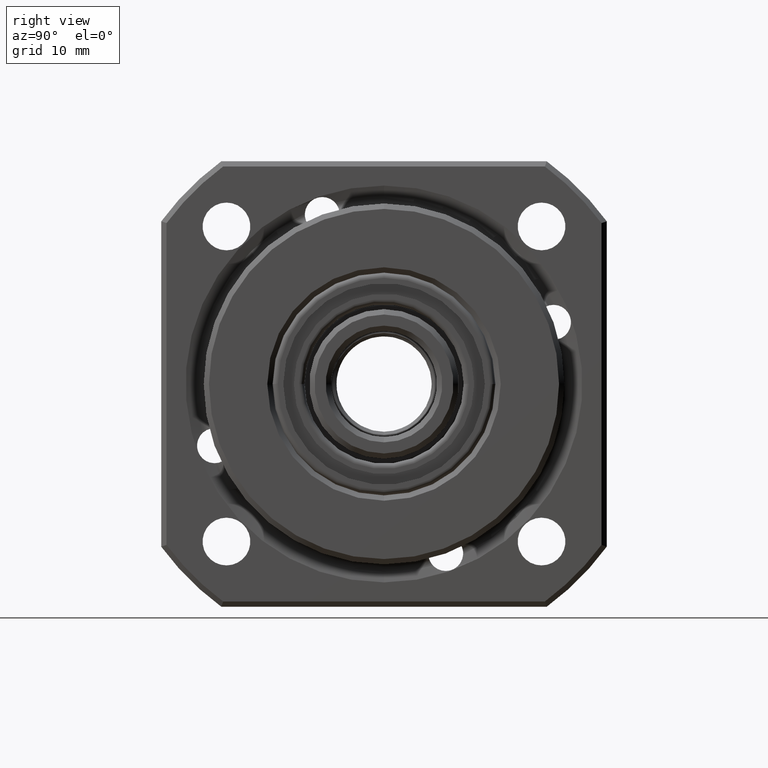
[diagram: clean part render]
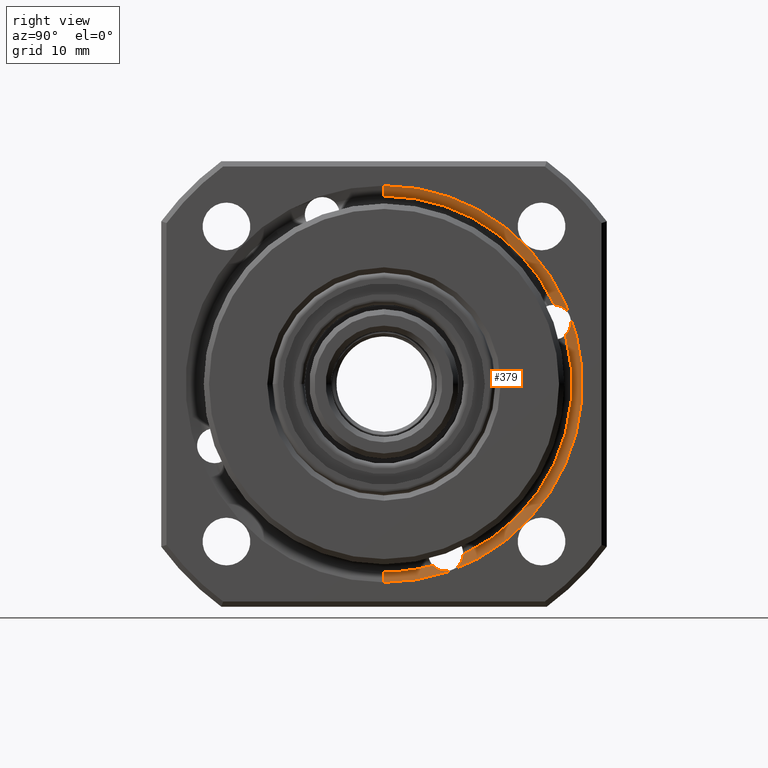
[diagram: same view with one face highlighted and labeled with its STEP entity id]
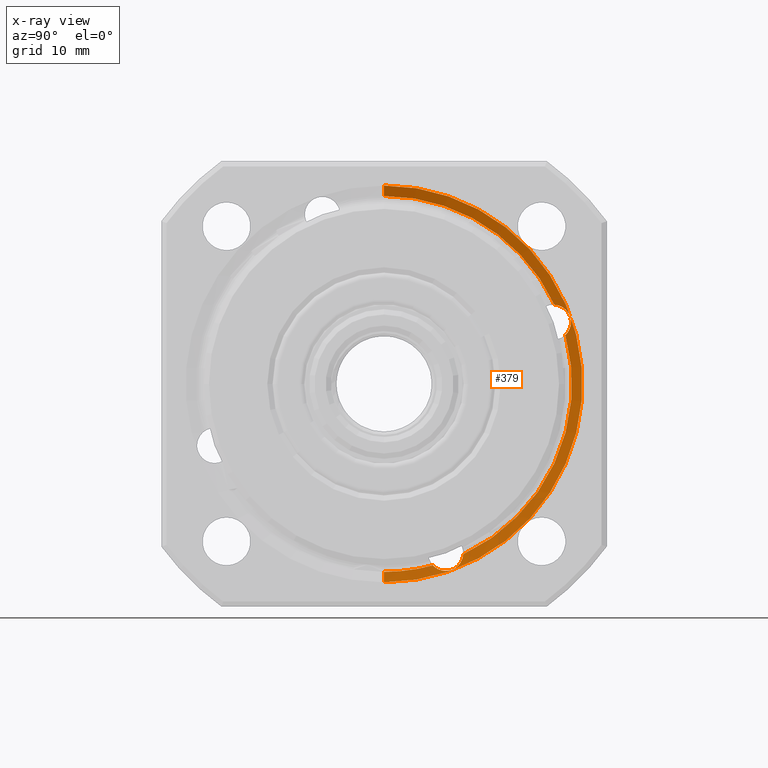
[diagram: x-ray of the same camera — body ghosted, the highlighted face saturated]
A machine part, right view. The second image highlights one B-rep face of the part: STEP entity #379.
The next image is the same camera in x-ray: the body ghosted, the highlighted face saturated — about 0% of this face is hidden behind the body in this view.
In plain terms, the highlighted conical surface has half-angle 74.64 deg.
Its self-contained STEP definition (entity closure, byte-faithful):
#63 = EDGE_CURVE ( 'NONE', #19482, #19540, #19090, .T. ) ;
#323 = VERTEX_POINT ( 'NONE', #19451 ) ;
#362 = ORIENTED_EDGE ( 'NONE', *, *, #15054, .T. ) ;
#363 = ORIENTED_EDGE ( 'NONE', *, *, #366, .T. ) ;
#366 = EDGE_CURVE ( 'NONE', #323, #15052, #489, .T. ) ;
#369 = ORIENTED_EDGE ( 'NONE', *, *, #19499, .F. ) ;
#370 = ORIENTED_EDGE ( 'NONE', *, *, #17004, .T. ) ;
#371 = EDGE_LOOP ( 'NONE', ( #369, #370, #363, #362, #401, #396, #385, #15477, #15478 ) ) ;
#379 = ADVANCED_FACE ( 'NONE', ( #465 ), #459, .F. ) ;
#382 = EDGE_CURVE ( 'NONE', #15120, #15009, #522, .T. ) ;
#385 = ORIENTED_EDGE ( 'NONE', *, *, #15175, .T. ) ;
#396 = ORIENTED_EDGE ( 'NONE', *, *, #15010, .T. ) ;
#401 = ORIENTED_EDGE ( 'NONE', *, *, #382, .T. ) ;
#457 = CARTESIAN_POINT ( 'NONE',  ( 5.728575577791647600, 0.0000000000000000000, 0.0000000000000000000 ) ) ;
#458 = AXIS2_PLACEMENT_3D ( 'NONE', #457, #524, #523 ) ;
#459 = CONICAL_SURFACE ( 'NONE', #458, 17.71190649074651400, 1.302713622844521500 ) ;
#465 = FACE_OUTER_BOUND ( 'NONE', #371, .T. ) ;
#466 = CARTESIAN_POINT ( 'NONE',  ( 5.728575577791646700, 17.10168638614014100, 4.609116432360703000 ) ) ;
#467 = CARTESIAN_POINT ( 'NONE',  ( 5.767212661747520600, 17.21803884916616300, 4.717908448881091000 ) ) ;
#468 = CARTESIAN_POINT ( 'NONE',  ( 5.802325543642256300, 17.31674880529568800, 4.841139131269209800 ) ) ;
#469 = CARTESIAN_POINT ( 'NONE',  ( 5.865871283844629900, 17.47851994692917500, 5.116653854459164200 ) ) ;
#470 = CARTESIAN_POINT ( 'NONE',  ( 5.893551360994446300, 17.53941548774999900, 5.266404702651184900 ) ) ;
#471 = CARTESIAN_POINT ( 'NONE',  ( 5.938875968216626300, 17.61575110817011600, 5.578688112689762100 ) ) ;
#472 = CARTESIAN_POINT ( 'NONE',  ( 5.956582848612114000, 17.63109000802730000, 5.742177532209025200 ) ) ;
#473 = CARTESIAN_POINT ( 'NONE',  ( 5.980184361663409800, 17.61364211282261400, 6.064745673990111100 ) ) ;
#474 = CARTESIAN_POINT ( 'NONE',  ( 5.986275243218680800, 17.58046807014964200, 6.227129751341998100 ) ) ;
#475 = CARTESIAN_POINT ( 'NONE',  ( 5.986255223868691500, 17.46978754811569700, 6.530988222567513500 ) ) ;
#476 = CARTESIAN_POINT ( 'NONE',  ( 5.980122885862383200, 17.39058284963612900, 6.676879135821045500 ) ) ;
#477 = CARTESIAN_POINT ( 'NONE',  ( 5.956533503709296800, 17.19688188351288700, 6.934581858715228400 ) ) ;
#478 = CARTESIAN_POINT ( 'NONE',  ( 5.938755288125873800, 17.07963458404452000, 7.050262235467986500 ) ) ;
#479 = CARTESIAN_POINT ( 'NONE',  ( 5.893515771534854500, 16.82098314770388800, 7.239875477771704500 ) ) ;
#480 = CARTESIAN_POINT ( 'NONE',  ( 5.865827229127376100, 16.67802905934624700, 7.315483282558085800 ) ) ;
#481 = CARTESIAN_POINT ( 'NONE',  ( 5.802312453287338000, 16.37716847165484400, 7.422468636280592100 ) ) ;
#482 = CARTESIAN_POINT ( 'NONE',  ( 5.767210790685894000, 16.22238837359190500, 7.453414898963696800 ) ) ;
#487 = CARTESIAN_POINT ( 'NONE',  ( 5.728575577791647600, 16.06333475839026500, 7.461964083057463200 ) ) ;
#489 = B_SPLINE_CURVE_WITH_KNOTS ( 'NONE', 3,
 ( #487, #482, #481, #480, #479, #478, #477, #476, #475, #474, #473, #472, #471, #470, #469, #468, #467, #466 ),
 .UNSPECIFIED., .F., .F.,
 ( 4, 2, 2, 2, 2, 2, 2, 2, 4 ),
 ( 8.366653779069564500E-007, 0.0004857858594675170900, 0.0009707350535571272900, 0.001455684247646737400, 0.001940633441736347600, 0.002425582635825957800, 0.002910531829915567700, 0.003395481024005178200, 0.003880430218094788100 ),
 .UNSPECIFIED. ) ;
#504 = CARTESIAN_POINT ( 'NONE',  ( 5.961288530987215700, 5.814342436536262100, -17.62477455336047800 ) ) ;
#505 = CARTESIAN_POINT ( 'NONE',  ( 5.979263079586454300, 6.023206071639195100, -17.62477455336047800 ) ) ;
#506 = CARTESIAN_POINT ( 'NONE',  ( 5.987778712637638300, 6.235066701291461100, -17.58396875879960300 ) ) ;
#507 = CARTESIAN_POINT ( 'NONE',  ( 5.985168406052669500, 6.527056486955110000, -17.46659974646413000 ) ) ;
#508 = CARTESIAN_POINT ( 'NONE',  ( 5.981724103986740800, 6.622097689956397900, -17.41736318841546800 ) ) ;
#509 = CARTESIAN_POINT ( 'NONE',  ( 5.969968914741374800, 6.798485750747709700, -17.30330473988637500 ) ) ;
#510 = CARTESIAN_POINT ( 'NONE',  ( 5.961714902765111300, 6.880344917140591000, -17.23853774505746700 ) ) ;
#511 = CARTESIAN_POINT ( 'NONE',  ( 5.940431345966806600, 7.031512805499700000, -17.09368249696449700 ) ) ;
#512 = CARTESIAN_POINT ( 'NONE',  ( 5.927299793972433200, 7.100804995016962300, -17.01317700463091900 ) ) ;
#513 = CARTESIAN_POINT ( 'NONE',  ( 5.897295344812885500, 7.220752674182131500, -16.84384060874524600 ) ) ;
#514 = CARTESIAN_POINT ( 'NONE',  ( 5.880320246249374000, 7.272334045483767700, -16.75423741786040600 ) ) ;
#515 = CARTESIAN_POINT ( 'NONE',  ( 5.823268359432946200, 7.401759357610931300, -16.47057196588791300 ) ) ;
#516 = CARTESIAN_POINT ( 'NONE',  ( 5.778649345986650600, 7.450883780129105500, -16.26947866860982100 ) ) ;
#517 = CARTESIAN_POINT ( 'NONE',  ( 5.728575577791647600, 7.461964083057409900, -16.06333475839029400 ) ) ;
#522 = B_SPLINE_CURVE_WITH_KNOTS ( 'NONE', 3,
 ( #517, #516, #515, #514, #513, #512, #511, #510, #509, #508, #507, #506, #505, #504 ),
 .UNSPECIFIED., .F., .F.,
 ( 4, 2, 2, 2, 2, 2, 4 ),
 ( 8.366653779069564500E-007, 0.0006293626061476786600, 0.0009436255765325643300, 0.001257888546917450100, 0.001572151517302335700, 0.001886414487687221000, 0.002514940428456989700 ),
 .UNSPECIFIED. ) ;
#523 = DIRECTION ( 'NONE',  ( 0.0000000000000000000, 0.0000000000000000000, -1.000000000000000000 ) ) ;
#524 = DIRECTION ( 'NONE',  ( 1.000000000000000000, 0.0000000000000000000, 0.0000000000000000000 ) ) ;
#556 = CARTESIAN_POINT ( 'NONE',  ( 5.728575577791644900, 4.609116432360642600, -17.10168638614015900 ) ) ;
#557 = CARTESIAN_POINT ( 'NONE',  ( 5.755773552489884500, 4.685698881389954300, -17.18359089397190000 ) ) ;
#558 = CARTESIAN_POINT ( 'NONE',  ( 5.781208225258092500, 4.769510609249516100, -17.25666155216972400 ) ) ;
#559 = CARTESIAN_POINT ( 'NONE',  ( 5.828763618815477400, 4.951284538596580900, -17.38546193539502500 ) ) ;
#560 = CARTESIAN_POINT ( 'NONE',  ( 5.851099671969954000, 5.050485931683432700, -17.44164356751067000 ) ) ;
#561 = CARTESIAN_POINT ( 'NONE',  ( 5.890888007258608300, 5.256867470919793600, -17.53182404756124100 ) ) ;
#562 = CARTESIAN_POINT ( 'NONE',  ( 5.908432116523358400, 5.364017969775481700, -17.56619544137922200 ) ) ;
#563 = CARTESIAN_POINT ( 'NONE',  ( 5.938841603679756000, 5.586433190183245600, -17.61290456761837900 ) ) ;
#564 = CARTESIAN_POINT ( 'NONE',  ( 5.951525981427388400, 5.700901947186532800, -17.62477455336047100 ) ) ;
#565 = CARTESIAN_POINT ( 'NONE',  ( 5.961288530987215700, 5.814342436536262100, -17.62477455336047800 ) ) ;
#568 = B_SPLINE_CURVE_WITH_KNOTS ( 'NONE', 3,
 ( #565, #564, #563, #562, #561, #560, #559, #558, #557, #556 ),
 .UNSPECIFIED., .F., .F.,
 ( 4, 2, 2, 2, 4 ),
 ( 0.002514940428456989700, 0.002856312875866439900, 0.003197685323275890000, 0.003539057770685339700, 0.003880430218094789900 ),
 .UNSPECIFIED. ) ;
#569 = CARTESIAN_POINT ( 'NONE',  ( 5.961288530987215700, 5.814342436536262100, -17.62477455336047800 ) ) ;
#574 = CARTESIAN_POINT ( 'NONE',  ( 5.728575577791644900, 4.609116432360642600, -17.10168638614015900 ) ) ;
#678 = DIRECTION ( 'NONE',  ( 0.0000000000000000000, 0.0000000000000000000, 1.000000000000000000 ) ) ;
#679 = DIRECTION ( 'NONE',  ( -1.000000000000000000, -0.0000000000000000000, -0.0000000000000000000 ) ) ;
#680 = AXIS2_PLACEMENT_3D ( 'NONE', #706, #679, #678 ) ;
#681 = CIRCLE ( 'NONE', #680, 17.71190649074651400 ) ;
#704 = CARTESIAN_POINT ( 'NONE',  ( 5.728575577791646700, 17.10168638614014100, 4.609116432360703000 ) ) ;
#706 = CARTESIAN_POINT ( 'NONE',  ( 5.728575577791647600, 0.0000000000000000000, 0.0000000000000000000 ) ) ;
#808 = CARTESIAN_POINT ( 'NONE',  ( 5.728575577791647600, 7.461964083057409900, -16.06333475839029400 ) ) ;
#959 = DIRECTION ( 'NONE',  ( 0.0000000000000000000, 0.0000000000000000000, 1.000000000000000000 ) ) ;
#960 = DIRECTION ( 'NONE',  ( -1.000000000000000000, -0.0000000000000000000, -0.0000000000000000000 ) ) ;
#961 = CARTESIAN_POINT ( 'NONE',  ( 5.728575577791647600, 0.0000000000000000000, 0.0000000000000000000 ) ) ;
#962 = AXIS2_PLACEMENT_3D ( 'NONE', #961, #960, #959 ) ;
#963 = CIRCLE ( 'NONE', #962, 17.71190649074651400 ) ;
#4163 = CIRCLE ( 'NONE', #4221, 17.71190649074651400 ) ;
#4218 = DIRECTION ( 'NONE',  ( 0.0000000000000000000, 0.0000000000000000000, 1.000000000000000000 ) ) ;
#4219 = DIRECTION ( 'NONE',  ( -1.000000000000000000, -0.0000000000000000000, -0.0000000000000000000 ) ) ;
#4220 = CARTESIAN_POINT ( 'NONE',  ( 5.728575577791647600, 0.0000000000000000000, 0.0000000000000000000 ) ) ;
#4221 = AXIS2_PLACEMENT_3D ( 'NONE', #4220, #4219, #4218 ) ;
#14110 = CARTESIAN_POINT ( 'NONE',  ( 5.728575577791647600, 0.0000000000000000000, 17.71190649074651800 ) ) ;
#14627 = CARTESIAN_POINT ( 'NONE',  ( 6.000000000000005300, 2.290013881647845200E-015, 18.70000000000000300 ) ) ;
#14650 = CARTESIAN_POINT ( 'NONE',  ( 5.728575577791647600, 0.0000000000000000000, -17.71190649074651400 ) ) ;
#14651 = DIRECTION ( 'NONE',  ( 0.2648831134331488500, 1.180864061162635900E-016, 0.9642805277604447100 ) ) ;
#14652 = VECTOR ( 'NONE', #14651, 999.9999999999998900 ) ;
#14653 = CARTESIAN_POINT ( 'NONE',  ( 5.728575577791647600, 2.169011322687598900E-015, 17.71190649074651400 ) ) ;
#14654 = LINE ( 'NONE', #14653, #14652 ) ;
#14688 = DIRECTION ( 'NONE',  ( 0.2648831134331488500, 0.0000000000000000000, -0.9642805277604447100 ) ) ;
#14689 = VECTOR ( 'NONE', #14688, 999.9999999999998900 ) ;
#14690 = CARTESIAN_POINT ( 'NONE',  ( 5.728575577791647600, 0.0000000000000000000, -17.71190649074651400 ) ) ;
#14691 = LINE ( 'NONE', #14690, #14689 ) ;
#14692 = CARTESIAN_POINT ( 'NONE',  ( 6.000000000000005300, 0.0000000000000000000, -18.70000000000000300 ) ) ;
#15006 = VERTEX_POINT ( 'NONE', #574 ) ;
#15009 = VERTEX_POINT ( 'NONE', #569 ) ;
#15010 = EDGE_CURVE ( 'NONE', #15009, #15006, #568, .T. ) ;
#15052 = VERTEX_POINT ( 'NONE', #704 ) ;
#15054 = EDGE_CURVE ( 'NONE', #15052, #15120, #681, .T. ) ;
#15120 = VERTEX_POINT ( 'NONE', #808 ) ;
#15175 = EDGE_CURVE ( 'NONE', #15006, #19501, #963, .T. ) ;
#15477 = ORIENTED_EDGE ( 'NONE', *, *, #19543, .T. ) ;
#15478 = ORIENTED_EDGE ( 'NONE', *, *, #63, .F. ) ;
#17004 = EDGE_CURVE ( 'NONE', #18683, #323, #4163, .T. ) ;
#18683 = VERTEX_POINT ( 'NONE', #14110 ) ;
#19086 = DIRECTION ( 'NONE',  ( 0.0000000000000000000, 0.0000000000000000000, 1.000000000000000000 ) ) ;
#19087 = DIRECTION ( 'NONE',  ( -1.000000000000000000, -0.0000000000000000000, -0.0000000000000000000 ) ) ;
#19088 = CARTESIAN_POINT ( 'NONE',  ( 6.000000000000005300, 0.0000000000000000000, 0.0000000000000000000 ) ) ;
#19089 = AXIS2_PLACEMENT_3D ( 'NONE', #19088, #19087, #19086 ) ;
#19090 = CIRCLE ( 'NONE', #19089, 18.70000000000000300 ) ;
#19451 = CARTESIAN_POINT ( 'NONE',  ( 5.728575577791647600, 16.06333475839026500, 7.461964083057463200 ) ) ;
#19482 = VERTEX_POINT ( 'NONE', #14627 ) ;
#19499 = EDGE_CURVE ( 'NONE', #18683, #19482, #14654, .T. ) ;
#19501 = VERTEX_POINT ( 'NONE', #14650 ) ;
#19540 = VERTEX_POINT ( 'NONE', #14692 ) ;
#19543 = EDGE_CURVE ( 'NONE', #19501, #19540, #14691, .T. ) ;